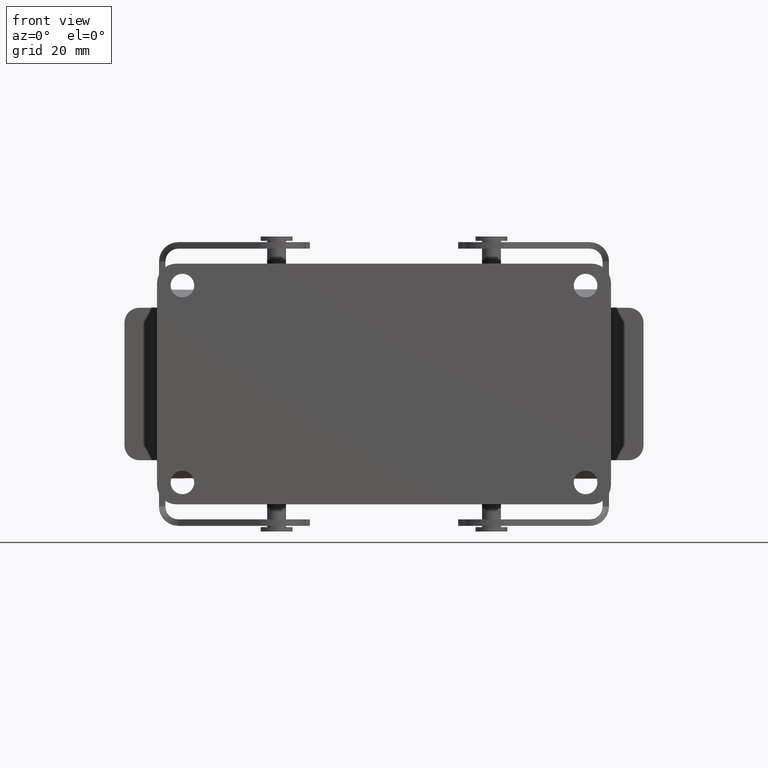
[diagram: clean part render]
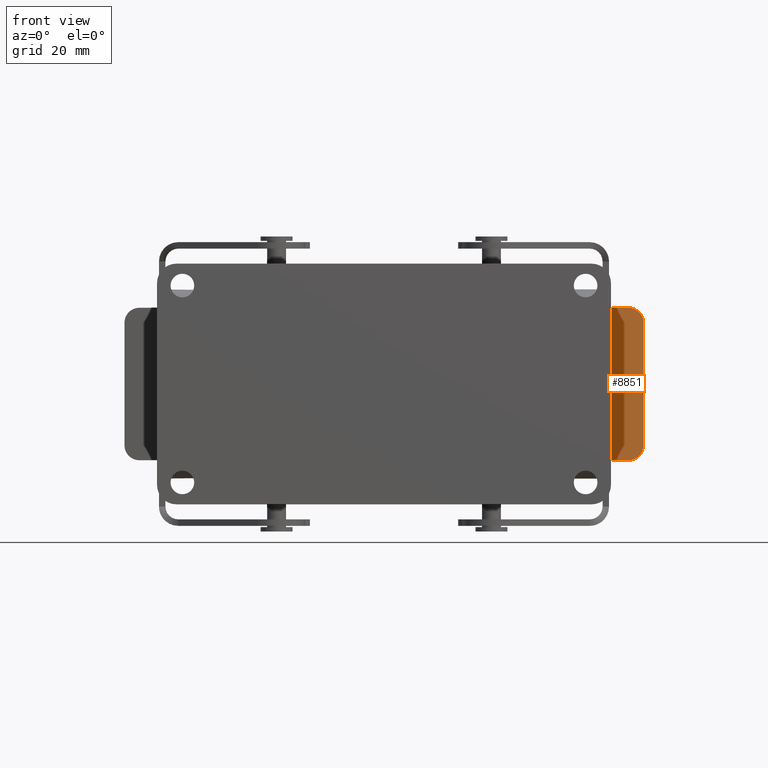
[diagram: same view with one face highlighted and labeled with its STEP entity id]
A machine part, front view. The second image highlights one B-rep face of the part: STEP entity #8851.
In plain terms, the highlighted planar face has unit normal (0, 1, 0).
Its self-contained STEP definition (entity closure, byte-faithful):
#7431=DIRECTION('',(1.E0,-5.491359115958E-13,-7.779425414273E-13));
#7432=VECTOR('',#7431,4.037057655052E0);
#7433=CARTESIAN_POINT('',(5.284535736061E1,9.049377665500E1,1.775E1));
#7434=LINE('',#7433,#7432);
#7486=DIRECTION('',(1.E0,-6.089776453731E-13,-2.475511728951E-12));
#7487=VECTOR('',#7486,4.037057656236E0);
#7488=CARTESIAN_POINT('',(5.284535736062E1,9.049377665500E1,-1.775E1));
#7489=LINE('',#7488,#7487);
#7523=DIRECTION('',(-5.099895466807E-13,3.322537862991E-14,1.E0));
#7524=VECTOR('',#7523,3.55E1);
#7525=CARTESIAN_POINT('',(5.284535736062E1,9.049377665500E1,-1.775E1));
#7526=LINE('',#7525,#7524);
#7527=CARTESIAN_POINT('',(5.688241501566E1,9.049377665500E1,1.425E1));
#7528=DIRECTION('',(0.E0,-1.E0,0.E0));
#7529=DIRECTION('',(1.E0,0.E0,0.E0));
#7530=AXIS2_PLACEMENT_3D('',#7527,#7528,#7529);
#7532=DIRECTION('',(0.E0,0.E0,1.E0));
#7533=VECTOR('',#7532,2.850000000004E1);
#7534=CARTESIAN_POINT('',(6.038241501566E1,9.049377665500E1,-1.425000000004E1));
#7535=LINE('',#7534,#7533);
#7536=CARTESIAN_POINT('',(5.688241501566E1,9.049377665500E1,-1.425000000005E1));
#7537=DIRECTION('',(0.E0,-1.E0,0.E0));
#7538=DIRECTION('',(5.171431536967E-10,0.E0,-1.E0));
#7539=AXIS2_PLACEMENT_3D('',#7536,#7537,#7538);
#7639=CARTESIAN_POINT('',(5.688241501566E1,9.049377665500E1,1.775E1));
#7641=VERTEX_POINT('',#7639);
#7643=CARTESIAN_POINT('',(5.284535736061E1,9.049377665500E1,1.775E1));
#7644=VERTEX_POINT('',#7643);
#7665=CARTESIAN_POINT('',(6.038241501566E1,9.049377665500E1,-1.425000000004E1));
#7666=VERTEX_POINT('',#7665);
#7667=CARTESIAN_POINT('',(6.038241501566E1,9.049377665500E1,1.425E1));
#7668=VERTEX_POINT('',#7667);
#7669=CARTESIAN_POINT('',(5.688241501686E1,9.049377665500E1,-1.775000000001E1));
#7670=VERTEX_POINT('',#7669);
#7681=CARTESIAN_POINT('',(5.284535736062E1,9.049377665500E1,-1.775E1));
#7682=VERTEX_POINT('',#7681);
#8838=CARTESIAN_POINT('',(5.661388618816E1,9.049377665500E1,
5.000444502912E-12));
#8839=DIRECTION('',(0.E0,1.E0,0.E0));
#8840=DIRECTION('',(1.E0,0.E0,0.E0));
#8841=AXIS2_PLACEMENT_3D('',#8838,#8839,#8840);
#8842=PLANE('',#8841);
#8843=ORIENTED_EDGE('',*,*,#8751,.F.);
#8844=ORIENTED_EDGE('',*,*,#8766,.F.);
#8845=ORIENTED_EDGE('',*,*,#8781,.F.);
#8846=ORIENTED_EDGE('',*,*,#8798,.F.);
#8847=ORIENTED_EDGE('',*,*,#8832,.T.);
#8848=ORIENTED_EDGE('',*,*,#8728,.T.);
#8849=EDGE_LOOP('',(#8843,#8844,#8845,#8846,#8847,#8848));
#8850=FACE_OUTER_BOUND('',#8849,.F.);
#8851=ADVANCED_FACE('',(#8850),#8842,.F.);
#7531=CIRCLE('',#7530,3.5E0);
#7540=CIRCLE('',#7539,3.5E0);
#8728=EDGE_CURVE('',#7644,#7641,#7434,.T.);
#8751=EDGE_CURVE('',#7668,#7641,#7531,.T.);
#8766=EDGE_CURVE('',#7666,#7668,#7535,.T.);
#8781=EDGE_CURVE('',#7670,#7666,#7540,.T.);
#8798=EDGE_CURVE('',#7682,#7670,#7489,.T.);
#8832=EDGE_CURVE('',#7682,#7644,#7526,.T.);